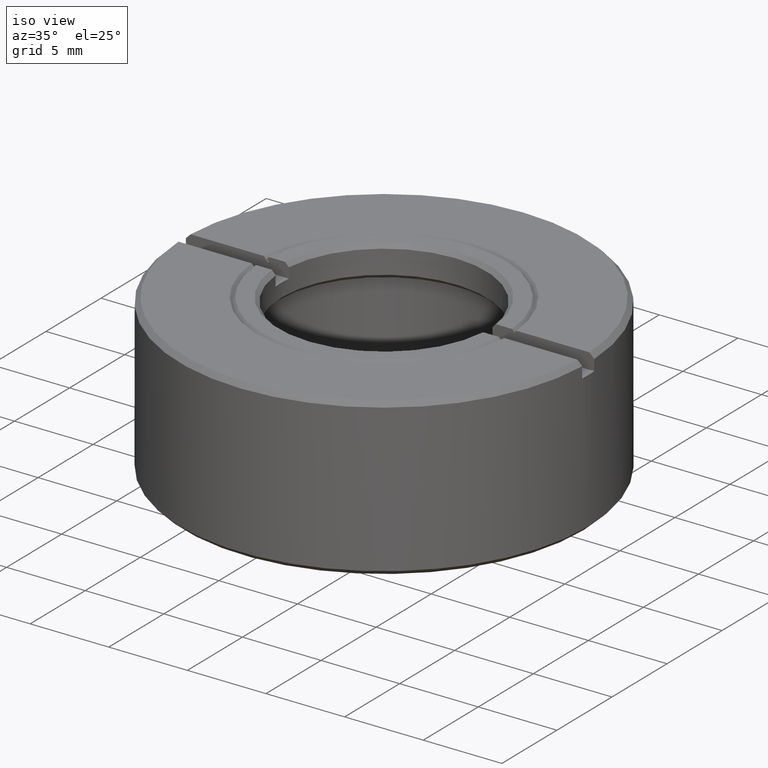
[diagram: clean part render]
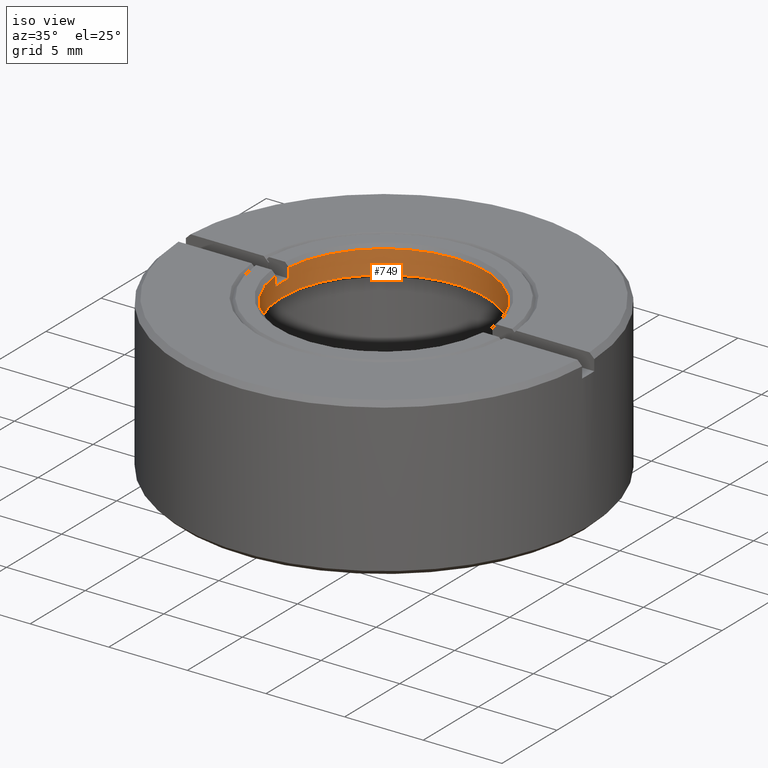
[diagram: same view with one face highlighted and labeled with its STEP entity id]
A machine part, iso view. The second image highlights one B-rep face of the part: STEP entity #749.
In plain terms, the highlighted cylindrical surface (bore or boss wall) has radius 6.5 mm, axis along (0, 0, 1).
Its self-contained STEP definition (entity closure, byte-faithful):
#19 = DIRECTION ( 'NONE',  ( -0.000000000000000000, 0.000000000000000000, 1.000000000000000000 ) ) ;
#22 = CARTESIAN_POINT ( 'NONE',  ( -6.472248450114915563, 0.6000000000000000888, 4.099999999999999645 ) ) ;
#28 = CARTESIAN_POINT ( 'NONE',  ( 0.000000000000000000, 0.000000000000000000, 4.099999999999999645 ) ) ;
#50 = ORIENTED_EDGE ( 'NONE', *, *, #1541, .T. ) ;
#58 = DIRECTION ( 'NONE',  ( -0.000000000000000000, -0.000000000000000000, -1.000000000000000000 ) ) ;
#61 = LINE ( 'NONE', #149, #218 ) ;
#105 = CARTESIAN_POINT ( 'NONE',  ( -6.472248450116069307, -0.5999999999999998668, 4.100000000000000533 ) ) ;
#107 = CARTESIAN_POINT ( 'NONE',  ( 6.472248450116069307, 0.6000000000000000888, 4.100000000000000533 ) ) ;
#149 = CARTESIAN_POINT ( 'NONE',  ( -6.472248450116069307, 0.6000000000000000888, 4.100000000000000533 ) ) ;
#150 = CARTESIAN_POINT ( 'NONE',  ( 0.000000000000000000, 0.000000000000000000, 3.000000000000000000 ) ) ;
#155 = ORIENTED_EDGE ( 'NONE', *, *, #1272, .F. ) ;
#171 = VECTOR ( 'NONE', #19, 1000.000000000000000 ) ;
#179 = EDGE_CURVE ( 'NONE', #291, #988, #1264, .T. ) ;
#212 = CARTESIAN_POINT ( 'NONE',  ( 6.472248450114915563, -0.5999999999999998668, 4.749999999995694999 ) ) ;
#218 = VECTOR ( 'NONE', #649, 1000.000000000000000 ) ;
#248 = FACE_OUTER_BOUND ( 'NONE', #1492, .T. ) ;
#259 = DIRECTION ( 'NONE',  ( 0.000000000000000000, -0.000000000000000000, 1.000000000000000000 ) ) ;
#274 = FACE_OUTER_BOUND ( 'NONE', #1558, .T. ) ;
#282 = CARTESIAN_POINT ( 'NONE',  ( 6.472248450114915563, 0.6000000000000000888, 4.099999999999999645 ) ) ;
#291 = VERTEX_POINT ( 'NONE', #212 ) ;
#293 = VERTEX_POINT ( 'NONE', #1210 ) ;
#294 = AXIS2_PLACEMENT_3D ( 'NONE', #28, #58, #793 ) ;
#315 = ORIENTED_EDGE ( 'NONE', *, *, #1435, .F. ) ;
#335 = CARTESIAN_POINT ( 'NONE',  ( 0.000000000000000000, 0.000000000000000000, 4.099999999999999645 ) ) ;
#424 = AXIS2_PLACEMENT_3D ( 'NONE', #150, #868, #1368 ) ;
#434 = DIRECTION ( 'NONE',  ( -0.000000000000000000, -0.000000000000000000, -1.000000000000000000 ) ) ;
#435 = EDGE_CURVE ( 'NONE', #832, #957, #1479, .T. ) ;
#448 = CIRCLE ( 'NONE', #294, 6.499999999999999112 ) ;
#453 = ORIENTED_EDGE ( 'NONE', *, *, #435, .T. ) ;
#467 = CARTESIAN_POINT ( 'NONE',  ( -6.472248450114915563, 0.6000000000000000888, 4.749999999995695887 ) ) ;
#505 = ORIENTED_EDGE ( 'NONE', *, *, #1070, .T. ) ;
#547 = EDGE_CURVE ( 'NONE', #832, #988, #448, .T. ) ;
#575 = AXIS2_PLACEMENT_3D ( 'NONE', #1098, #1112, #727 ) ;
#614 = DIRECTION ( 'NONE',  ( -1.000000000000000000, 0.000000000000000000, 0.000000000000000000 ) ) ;
#649 = DIRECTION ( 'NONE',  ( -0.000000000000000000, 0.000000000000000000, -1.000000000000000000 ) ) ;
#667 = DIRECTION ( 'NONE',  ( 1.000000000000000000, 0.000000000000000000, 0.000000000000000000 ) ) ;
#689 = VERTEX_POINT ( 'NONE', #1235 ) ;
#709 = CIRCLE ( 'NONE', #949, 6.499999999999999112 ) ;
#712 = ORIENTED_EDGE ( 'NONE', *, *, #547, .F. ) ;
#727 = DIRECTION ( 'NONE',  ( 1.000000000000000000, 0.000000000000000000, 0.000000000000000000 ) ) ;
#749 = ADVANCED_FACE ( 'NONE', ( #248, #274 ), #769, .F. ) ;
#769 = CYLINDRICAL_SURFACE ( 'NONE', #424, 6.499999999999999112 ) ;
#793 = DIRECTION ( 'NONE',  ( 1.000000000000000000, 0.000000000000000000, 0.000000000000000000 ) ) ;
#798 = CARTESIAN_POINT ( 'NONE',  ( -6.500000000073669071, 0.000000000000000000, 3.249999999984538590 ) ) ;
#832 = VERTEX_POINT ( 'NONE', #282 ) ;
#868 = DIRECTION ( 'NONE',  ( 0.000000000000000000, 0.000000000000000000, 1.000000000000000000 ) ) ;
#905 = CARTESIAN_POINT ( 'NONE',  ( 0.000000000000000000, 0.000000000000000000, 4.750000000000008882 ) ) ;
#949 = AXIS2_PLACEMENT_3D ( 'NONE', #335, #1198, #1062 ) ;
#957 = VERTEX_POINT ( 'NONE', #1327 ) ;
#976 = CARTESIAN_POINT ( 'NONE',  ( 0.000000000000000000, 0.000000000000000000, 3.249999999984538590 ) ) ;
#988 = VERTEX_POINT ( 'NONE', #1332 ) ;
#995 = LINE ( 'NONE', #105, #171 ) ;
#1013 = CARTESIAN_POINT ( 'NONE',  ( 6.472248450116069307, -0.5999999999999998668, 4.100000000000000533 ) ) ;
#1062 = DIRECTION ( 'NONE',  ( 1.000000000000000000, 7.993605777301127091E-15, 0.000000000000000000 ) ) ;
#1065 = VERTEX_POINT ( 'NONE', #467 ) ;
#1070 = EDGE_CURVE ( 'NONE', #1254, #1254, #1181, .T. ) ;
#1098 = CARTESIAN_POINT ( 'NONE',  ( 0.000000000000000000, 0.000000000000000000, 4.750000000000008882 ) ) ;
#1099 = AXIS2_PLACEMENT_3D ( 'NONE', #976, #1473, #614 ) ;
#1112 = DIRECTION ( 'NONE',  ( -0.000000000000000000, -0.000000000000000000, -1.000000000000000000 ) ) ;
#1163 = ORIENTED_EDGE ( 'NONE', *, *, #1576, .F. ) ;
#1180 = VERTEX_POINT ( 'NONE', #22 ) ;
#1181 = CIRCLE ( 'NONE', #1099, 6.500000000073669071 ) ;
#1198 = DIRECTION ( 'NONE',  ( -0.000000000000000000, -0.000000000000000000, -1.000000000000000000 ) ) ;
#1210 = CARTESIAN_POINT ( 'NONE',  ( -6.472248450114915563, -0.5999999999999998668, 4.099999999999999645 ) ) ;
#1235 = CARTESIAN_POINT ( 'NONE',  ( -6.472248450117285223, -0.5999999999999998668, 4.749999999996905586 ) ) ;
#1254 = VERTEX_POINT ( 'NONE', #798 ) ;
#1264 = LINE ( 'NONE', #1013, #1568 ) ;
#1272 = EDGE_CURVE ( 'NONE', #291, #689, #1444, .T. ) ;
#1288 = CIRCLE ( 'NONE', #575, 6.499999999999999112 ) ;
#1304 = EDGE_CURVE ( 'NONE', #1065, #1180, #61, .T. ) ;
#1306 = ORIENTED_EDGE ( 'NONE', *, *, #1304, .T. ) ;
#1327 = CARTESIAN_POINT ( 'NONE',  ( 6.472248450117285223, 0.6000000000000000888, 4.749999999996905586 ) ) ;
#1332 = CARTESIAN_POINT ( 'NONE',  ( 6.472248450114915563, -0.5999999999999998668, 4.099999999999999645 ) ) ;
#1368 = DIRECTION ( 'NONE',  ( 1.000000000000000000, 0.000000000000000000, 0.000000000000000000 ) ) ;
#1422 = AXIS2_PLACEMENT_3D ( 'NONE', #905, #434, #667 ) ;
#1435 = EDGE_CURVE ( 'NONE', #293, #1180, #709, .T. ) ;
#1444 = CIRCLE ( 'NONE', #1422, 6.499999999999999112 ) ;
#1452 = ORIENTED_EDGE ( 'NONE', *, *, #179, .T. ) ;
#1473 = DIRECTION ( 'NONE',  ( -0.000000000000000000, -0.000000000000000000, -1.000000000000000000 ) ) ;
#1479 = LINE ( 'NONE', #107, #1519 ) ;
#1492 = EDGE_LOOP ( 'NONE', ( #712, #453, #1163, #1306, #315, #50, #155, #1452 ) ) ;
#1519 = VECTOR ( 'NONE', #259, 1000.000000000000000 ) ;
#1541 = EDGE_CURVE ( 'NONE', #293, #689, #995, .T. ) ;
#1555 = DIRECTION ( 'NONE',  ( 0.000000000000000000, -0.000000000000000000, -1.000000000000000000 ) ) ;
#1558 = EDGE_LOOP ( 'NONE', ( #505 ) ) ;
#1568 = VECTOR ( 'NONE', #1555, 1000.000000000000000 ) ;
#1576 = EDGE_CURVE ( 'NONE', #1065, #957, #1288, .T. ) ;